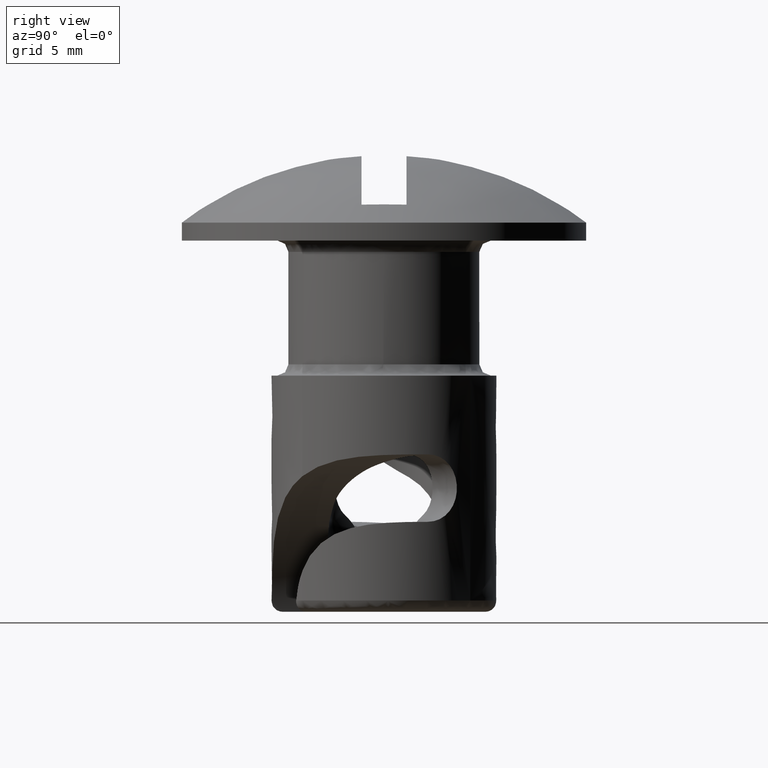
[diagram: clean part render]
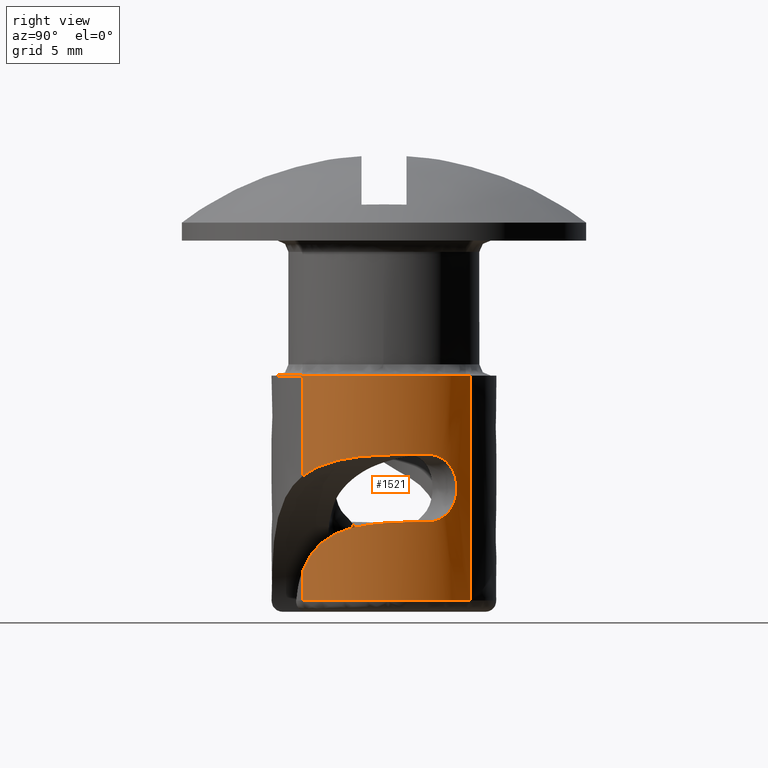
[diagram: same view with one face highlighted and labeled with its STEP entity id]
A machine part, right view. The second image highlights one B-rep face of the part: STEP entity #1521.
In plain terms, the highlighted face is a freeform B-spline surface patch.
Its self-contained STEP definition (entity closure, byte-faithful):
#985=CARTESIAN_POINT('',(3.441774243367128,-3.626873293093873,-14.683041871288410));
#986=VERTEX_POINT('',#985);
#1000=CARTESIAN_POINT('',(3.441769540624432,-3.626875022551604,-15.999992000000001));
#1001=VERTEX_POINT('',#1000);
#1015=CARTESIAN_POINT('',(3.441769540624432,-3.626875022551604,-15.999992000000001));
#1016=CARTESIAN_POINT('',(3.441774243367128,-3.626873293093873,-14.683041871288410));
#1017=QUASI_UNIFORM_CURVE('',1,(#1015,#1016),.UNSPECIFIED.,.F.,.U.);
#1018=EDGE_CURVE('',#1001,#986,#1017,.T.);
#1045=CARTESIAN_POINT('',(3.205212513216011,3.837526904807765,-15.999992000000001));
#1046=VERTEX_POINT('',#1045);
#1244=CARTESIAN_POINT('',(3.441776297669546,-3.626875458289376,-10.471454945593001));
#1245=VERTEX_POINT('',#1244);
#1279=CARTESIAN_POINT('',(3.441772657850810,-3.626872064420038,-6.0));
#1280=VERTEX_POINT('',#1279);
#1281=CARTESIAN_POINT('',(3.441776297669546,-3.626875458289376,-10.471454945593001));
#1282=CARTESIAN_POINT('',(3.441772657850810,-3.626872064420038,-6.0));
#1283=QUASI_UNIFORM_CURVE('',1,(#1281,#1282),.UNSPECIFIED.,.F.,.U.);
#1284=EDGE_CURVE('',#1245,#1280,#1283,.T.);
#1303=CARTESIAN_POINT('',(3.205211575530467,3.837527687989288,-6.0));
#1304=VERTEX_POINT('',#1303);
#1320=CARTESIAN_POINT('',(3.205212513216011,3.837526904807765,-15.999992000000001));
#1321=CARTESIAN_POINT('',(3.205211575530467,3.837527687989288,-6.0));
#1322=QUASI_UNIFORM_CURVE('',1,(#1320,#1321),.UNSPECIFIED.,.F.,.U.);
#1323=EDGE_CURVE('',#1046,#1304,#1322,.T.);
#1328=CARTESIAN_POINT('',(3.414159354550804,-3.653076110821718,-16.249991800000000));
#1329=CARTESIAN_POINT('',(3.427944311257014,-3.639994675353826,-16.249991800000000));
#1330=CARTESIAN_POINT('',(7.068644733530205,-0.185098976592668,-16.249991799999997));
#1331=CARTESIAN_POINT('',(3.626871855061437,3.441772878468769,-16.249991800000000));
#1332=CARTESIAN_POINT('',(3.427504307509547,3.651862437704958,-16.249991800000007));
#1333=CARTESIAN_POINT('',(3.189877330289500,3.850335288378670,-16.249991800000004));
#1334=CARTESIAN_POINT('',(3.174499584691572,3.863179221510595,-16.249991800000004));
#1335=CARTESIAN_POINT('',(3.414159354550804,-3.653076110821718,-5.743750204999999));
#1336=CARTESIAN_POINT('',(3.427944311257014,-3.639994675353826,-5.743750204999999));
#1337=CARTESIAN_POINT('',(7.068644733530205,-0.185098976592668,-5.743750205000000));
#1338=CARTESIAN_POINT('',(3.626871855061437,3.441772878468769,-5.743750205000000));
#1339=CARTESIAN_POINT('',(3.427504307509547,3.651862437704958,-5.743750204999999));
#1340=CARTESIAN_POINT('',(3.189877330289500,3.850335288378670,-5.743750205000000));
#1341=CARTESIAN_POINT('',(3.174499584691572,3.863179221510595,-5.743750205000000));
#1349=(BOUNDED_SURFACE()B_SPLINE_SURFACE(2,1,((#1328,#1335),(#1329,#1336),(#1330,#1337),(#1331,#1338),(#1332,#1339),(#1333,#1340),(#1334,#1341)),.UNSPECIFIED.,.F.,.F.,.U.)B_SPLINE_SURFACE_WITH_KNOTS((3,1,2,1,3),(2,2),(0.0,0.044740487559420,8.329011735021316,8.991753434818270,9.036489696285292),(0.0,10.506241595000009),.UNSPECIFIED.)GEOMETRIC_REPRESENTATION_ITEM()RATIONAL_B_SPLINE_SURFACE(((1.003163630214686,1.003163630214686),(1.001581815107343,1.001581815107343),(0.707106781186548,0.707106781186548),(1.0,1.0),(0.976568542494924,0.976568542494924),(0.955557519009033,0.955557519009033),(0.954228919827405,0.954228919827405)))REPRESENTATION_ITEM('')SURFACE());
#1350=CARTESIAN_POINT('',(3.441769540624433,-3.626875022551604,-15.999992000000002));
#1351=CARTESIAN_POINT('',(5.871268088622720,-1.321371234996644,-15.999991999999999));
#1352=CARTESIAN_POINT('',(4.663728750462753,1.802674164153669,-15.999992000000001));
#1353=CARTESIAN_POINT('',(4.197569954227769,3.008681452388637,-15.999991999999999));
#1354=CARTESIAN_POINT('',(3.205212513216011,3.837526904807766,-15.999992000000002));
#1362=(BOUNDED_CURVE()B_SPLINE_CURVE(2,(#1350,#1351,#1352,#1353,#1354),.UNSPECIFIED.,.F.,.U.)B_SPLINE_CURVE_WITH_KNOTS((3,2,3),(0.035159483034312,0.500000000000000,0.701706688052133),.UNSPECIFIED.)CURVE()GEOMETRIC_REPRESENTATION_ITEM()RATIONAL_B_SPLINE_CURVE((0.974721088157800,0.820255378772700,1.0,0.922004018755491,0.906937281743806))REPRESENTATION_ITEM(''));
#1363=EDGE_CURVE('',#1001,#1046,#1362,.T.);
#1364=ORIENTED_EDGE('',*,*,#1363,.T.);
#1365=ORIENTED_EDGE('',*,*,#1323,.T.);
#1366=CARTESIAN_POINT('',(5.0,0.0,-6.0));
#1367=VERTEX_POINT('',#1366);
#1368=CARTESIAN_POINT('',(5.0,0.0,-6.0));
#1369=CARTESIAN_POINT('',(4.999999999999999,2.338469674221193,-5.999999999999999));
#1370=CARTESIAN_POINT('',(3.205211575530467,3.837527687989289,-6.0));
#1378=(BOUNDED_CURVE()B_SPLINE_CURVE(2,(#1368,#1369,#1370),.UNSPECIFIED.,.F.,.U.)B_SPLINE_CURVE_WITH_KNOTS((3,3),(0.0,0.138519971314716),.UNSPECIFIED.)CURVE()GEOMETRIC_REPRESENTATION_ITEM()RATIONAL_B_SPLINE_CURVE((1.0,0.837713758926743,0.855266601519411))REPRESENTATION_ITEM(''));
#1379=EDGE_CURVE('',#1367,#1304,#1378,.T.);
#1380=ORIENTED_EDGE('',*,*,#1379,.F.);
#1381=CARTESIAN_POINT('',(3.441772657850810,-3.626872064420038,-6.0));
#1382=CARTESIAN_POINT('',(5.0,-2.148169890118183,-6.000000000000001));
#1383=CARTESIAN_POINT('',(5.0,0.0,-6.0));
#1391=(BOUNDED_CURVE()B_SPLINE_CURVE(2,(#1381,#1382,#1383),.UNSPECIFIED.,.F.,.U.)B_SPLINE_CURVE_WITH_KNOTS((3,3),(0.871049508299242,1.0),.UNSPECIFIED.)CURVE()GEOMETRIC_REPRESENTATION_ITEM()RATIONAL_B_SPLINE_CURVE((0.853699662729028,0.848925101672750,1.0))REPRESENTATION_ITEM(''));
#1392=EDGE_CURVE('',#1280,#1367,#1391,.T.);
#1393=ORIENTED_EDGE('',*,*,#1392,.F.);
#1394=ORIENTED_EDGE('',*,*,#1284,.F.);
#1395=CARTESIAN_POINT('',(4.602524578819660,1.953654908462775,-9.500000000000000));
#1396=VERTEX_POINT('',#1395);
#1397=CARTESIAN_POINT('',(3.441776297669546,-3.626875458289376,-10.471454945593001));
#1398=CARTESIAN_POINT('',(3.548381509798976,-3.525717545690830,-10.389834397024240));
#1399=CARTESIAN_POINT('',(3.652592598367981,-3.417886701879547,-10.314358264936960));
#1400=CARTESIAN_POINT('',(3.834674338870442,-3.210957832212222,-10.188839510665620));
#1401=CARTESIAN_POINT('',(3.913650476981982,-3.114392468433850,-10.136731032872101));
#1402=CARTESIAN_POINT('',(4.066783014657808,-2.911593864520123,-10.039588742060870));
#1403=CARTESIAN_POINT('',(4.141245809526811,-2.804805214253775,-9.994391371279866));
#1404=CARTESIAN_POINT('',(4.351415886478691,-2.476428944943589,-9.871486566765258));
#1405=CARTESIAN_POINT('',(4.475379853534943,-2.245292785788621,-9.805434104324741));
#1406=CARTESIAN_POINT('',(4.634748496876306,-1.880605395421023,-9.724523916186765));
#1407=CARTESIAN_POINT('',(4.683430846234479,-1.756036426455043,-9.700596510378208));
#1408=CARTESIAN_POINT('',(4.749366496346248,-1.564623358477206,-9.668664364524494));
#1409=CARTESIAN_POINT('',(4.770195116817543,-1.499932632052761,-9.658665235824481));
#1410=CARTESIAN_POINT('',(4.809061481041812,-1.370214733642255,-9.640054919865758));
#1411=CARTESIAN_POINT('',(4.827143866245112,-1.305074134371876,-9.631421843659249));
#1412=CARTESIAN_POINT('',(4.910849266136363,-0.978002447094358,-9.591262512111106));
#1413=CARTESIAN_POINT('',(4.956467477360083,-0.711993199237515,-9.568652905663850));
#1414=CARTESIAN_POINT('',(4.986423274826610,-0.374385009953064,-9.547758871331718));
#1415=CARTESIAN_POINT('',(4.991053814304772,-0.306606815015429,-9.543954416044903));
#1416=CARTESIAN_POINT('',(4.997553755421681,-0.170538966045762,-9.537002851556004));
#1417=CARTESIAN_POINT('',(4.999423433452044,-0.102132934110173,-9.533851017553978));
#1418=CARTESIAN_POINT('',(5.000808249380353,0.103035514947085,-9.525289053641235));
#1419=CARTESIAN_POINT('',(4.996122824351843,0.239010771575370,-9.520791188794787));
#1420=CARTESIAN_POINT('',(4.965685967688790,0.644569602078663,-9.509845702912930));
#1421=CARTESIAN_POINT('',(4.923658369369876,0.911800119627725,-9.505869422404055));
#1422=CARTESIAN_POINT('',(4.827832726320831,1.307852327200382,-9.502173121065090));
#1423=CARTESIAN_POINT('',(4.790311754253912,1.439330061271592,-9.501338147777082));
#1424=CARTESIAN_POINT('',(4.704331981734637,1.699417351723835,-9.500251493202404));
#1425=CARTESIAN_POINT('',(4.656068952132438,1.827512128529285,-9.499999999999314));
#1426=CARTESIAN_POINT('',(4.602524578819660,1.953654908462775,-9.500000000000000));
#1427=B_SPLINE_CURVE_WITH_KNOTS('',3,(#1397,#1398,#1399,#1400,#1401,#1402,#1403,#1404,#1405,#1406,#1407,#1408,#1409,#1410,#1411,#1412,#1413,#1414,#1415,#1416,#1417,#1418,#1419,#1420,#1421,#1422,#1423,#1424,#1425,#1426),.UNSPECIFIED.,.F.,.U.,(4,2,2,2,2,2,2,2,2,2,2,2,2,2,4),(0.523473233906410,0.562500000000006,0.593750000000005,0.625000000000005,0.687500000000004,0.718750000000004,0.734375000000004,0.750000000000003,0.812500000000003,0.828125000000002,0.843750000000002,0.875000000000002,0.937500000000001,0.968750000000000,1.0),.UNSPECIFIED.);
#1428=EDGE_CURVE('',#1245,#1396,#1427,.T.);
#1429=ORIENTED_EDGE('',*,*,#1428,.T.);
#1430=CARTESIAN_POINT('',(4.602524578820230,1.953654908464365,-12.500000000003761));
#1431=VERTEX_POINT('',#1430);
#1432=CARTESIAN_POINT('',(4.602524578819660,1.953654908462775,-9.500000000000000));
#1433=CARTESIAN_POINT('',(4.563888335937325,2.044676233022971,-9.499999999998712));
#1434=CARTESIAN_POINT('',(4.522988108416792,2.133531719943489,-9.509682829590782));
#1435=CARTESIAN_POINT('',(4.458480223899396,2.263691421178953,-9.538600209390721));
#1436=CARTESIAN_POINT('',(4.436325682373277,2.306788186096278,-9.550742209554334));
#1437=CARTESIAN_POINT('',(4.391689454748661,2.390673760396321,-9.579593394369102));
#1438=CARTESIAN_POINT('',(4.369260238922511,2.431385331617874,-9.596239295939933));
#1439=CARTESIAN_POINT('',(4.301813212885345,2.550035636297681,-9.652631568160198));
#1440=CARTESIAN_POINT('',(4.256622245118567,2.624516412491074,-9.698766978454312));
#1441=CARTESIAN_POINT('',(4.166965229559699,2.764655514293546,-9.808624989452861));
#1442=CARTESIAN_POINT('',(4.123928188989802,2.828103263411385,-9.870610466680208));
#1443=CARTESIAN_POINT('',(4.063011887700120,2.914304778934972,-9.973769728811167));
#1444=CARTESIAN_POINT('',(4.043314921861692,2.941534866259906,-10.009869394523530));
#1445=CARTESIAN_POINT('',(4.005353683660794,2.993019344333916,-10.085599964781441));
#1446=CARTESIAN_POINT('',(3.987068279313911,3.017296079900917,-10.125325430129980));
#1447=CARTESIAN_POINT('',(3.935837247661399,3.084208415575645,-10.247326254159301));
#1448=CARTESIAN_POINT('',(3.906065506707493,3.121568112939354,-10.333173105041331));
#1449=CARTESIAN_POINT('',(3.869015228129437,3.167191969411543,-10.468863480211461));
#1450=CARTESIAN_POINT('',(3.857908938142201,3.180686438203840,-10.515408293585191));
#1451=CARTESIAN_POINT('',(3.838645093046536,3.203908775667784,-10.610277731646409));
#1452=CARTESIAN_POINT('',(3.830575341310173,3.213532960955392,-10.658121174139771));
#1453=CARTESIAN_POINT('',(3.811099976680845,3.236653072873953,-10.802856774833430));
#1454=CARTESIAN_POINT('',(3.804400519366002,3.244462465592797,-10.900979740911909));
#1455=CARTESIAN_POINT('',(3.804464001416535,3.244388026164331,-11.100424053246609));
#1456=CARTESIAN_POINT('',(3.811220267633781,3.236511522801229,-11.198357456029550));
#1457=CARTESIAN_POINT('',(3.830709542850856,3.213373008183660,-11.342713633293229));
#1458=CARTESIAN_POINT('',(3.838772165615324,3.203756348083364,-11.390405392791290));
#1459=CARTESIAN_POINT('',(3.857987983951831,3.180590384358021,-11.484923042933181));
#1460=CARTESIAN_POINT('',(3.869159482681559,3.167016169637896,-11.531723439997840));
#1461=CARTESIAN_POINT('',(3.906337838463248,3.121229049025454,-11.667705702132780));
#1462=CARTESIAN_POINT('',(3.936183187646427,3.083767803543986,-11.753605951446470));
#1463=CARTESIAN_POINT('',(3.987451172444842,3.016790286975460,-11.875531304672730));
#1464=CARTESIAN_POINT('',(4.005736760199249,2.992507007240880,-11.915208834497470));
#1465=CARTESIAN_POINT('',(4.043732834366357,2.940960717973767,-11.990918784804149));
#1466=CARTESIAN_POINT('',(4.063440839945875,2.913706825363495,-12.026995332467591));
#1467=CARTESIAN_POINT('',(4.124368310533359,2.827462066006832,-12.130056315970871));
#1468=CARTESIAN_POINT('',(4.167374391739297,2.764036537589164,-12.191926270961050));
#1469=CARTESIAN_POINT('',(4.256934651737492,2.624007369061484,-12.301565505830970));
#1470=CARTESIAN_POINT('',(4.302196790825363,2.549380996104971,-12.347723002082891));
#1471=CARTESIAN_POINT('',(4.369475931489904,2.430995733583821,-12.403923958845439));
#1472=CARTESIAN_POINT('',(4.391828437819328,2.390414362847930,-12.420499122912011));
#1473=CARTESIAN_POINT('',(4.436270531590656,2.306890032898965,-12.449219454146551));
#1474=CARTESIAN_POINT('',(4.458477163732524,2.263700551619402,-12.461402498947940));
#1475=CARTESIAN_POINT('',(4.523174490997310,2.133149725569401,-12.490392544015160));
#1476=CARTESIAN_POINT('',(4.564039231841210,2.044320744390517,-12.499999999997730));
#1477=CARTESIAN_POINT('',(4.602524578820230,1.953654908464365,-12.500000000003761));
#1478=B_SPLINE_CURVE_WITH_KNOTS('',3,(#1432,#1433,#1434,#1435,#1436,#1437,#1438,#1439,#1440,#1441,#1442,#1443,#1444,#1445,#1446,#1447,#1448,#1449,#1450,#1451,#1452,#1453,#1454,#1455,#1456,#1457,#1458,#1459,#1460,#1461,#1462,#1463,#1464,#1465,#1466,#1467,#1468,#1469,#1470,#1471,#1472,#1473,#1474,#1475,#1476,#1477),.UNSPECIFIED.,.F.,.U.,(4,2,2,2,2,2,2,2,2,2,2,2,2,2,2,2,2,2,2,2,2,2,4),(0.0,0.062500000000001,0.093750000000001,0.125000000000002,0.187500000000002,0.250000000000003,0.281250000000003,0.312500000000003,0.375000000000003,0.406250000000004,0.437500000000004,0.500000000000004,0.562500000000004,0.593750000000004,0.625000000000004,0.687500000000004,0.718750000000004,0.750000000000004,0.812500000000003,0.875000000000002,0.906250000000002,0.937500000000001,1.0),.UNSPECIFIED.);
#1479=EDGE_CURVE('',#1396,#1431,#1478,.T.);
#1480=ORIENTED_EDGE('',*,*,#1479,.T.);
#1481=CARTESIAN_POINT('',(3.441774243367128,-3.626873293093873,-14.683041871288410));
#1482=CARTESIAN_POINT('',(3.458372929608056,-3.611119549832607,-14.640628025512950));
#1483=CARTESIAN_POINT('',(3.475463306327664,-3.594681831130905,-14.598668672144710));
#1484=CARTESIAN_POINT('',(3.554884268030372,-3.517137152199069,-14.410942587141889));
#1485=CARTESIAN_POINT('',(3.622578274773292,-3.447971163048842,-14.270361972984050));
#1486=CARTESIAN_POINT('',(3.840223736691255,-3.209213780655119,-13.866283462725200));
#1487=CARTESIAN_POINT('',(3.997130243592130,-3.016723910657083,-13.634265171982710));
#1488=CARTESIAN_POINT('',(4.191212266237683,-2.727376132304492,-13.386887059253629));
#1489=CARTESIAN_POINT('',(4.230054400412429,-2.666835398409543,-13.339403778152260));
#1490=CARTESIAN_POINT('',(4.306500511154403,-2.541539934396531,-13.249343413261320));
#1491=CARTESIAN_POINT('',(4.343896025319115,-2.477145569973763,-13.206995277086961));
#1492=CARTESIAN_POINT('',(4.453078612969107,-2.278785606387433,-13.087369366273110));
#1493=CARTESIAN_POINT('',(4.521859766353056,-2.139649282588571,-13.017495955196720));
#1494=CARTESIAN_POINT('',(4.617045568706756,-1.920731875996379,-12.925337288910629));
#1495=CARTESIAN_POINT('',(4.647444122741635,-1.846055682427545,-12.896730344687450));
#1496=CARTESIAN_POINT('',(4.705252122393513,-1.693299022709614,-12.843418472958460));
#1497=CARTESIAN_POINT('',(4.732641347706611,-1.615218239232007,-12.818734937622480));
#1498=CARTESIAN_POINT('',(4.808854179847189,-1.379219972915420,-12.750915742389980));
#1499=CARTESIAN_POINT('',(4.852154044914729,-1.218479222408599,-12.713586222361631));
#1500=CARTESIAN_POINT('',(4.922867212770048,-0.890769406495646,-12.650935993207209));
#1501=CARTESIAN_POINT('',(4.950292022645133,-0.723744885333959,-12.625618807743850));
#1502=CARTESIAN_POINT('',(4.988155244563982,-0.384065325465553,-12.584036204595060));
#1503=CARTESIAN_POINT('',(4.998301699420537,-0.214132160118844,-12.568081577288829));
#1504=CARTESIAN_POINT('',(5.001306649176196,0.125718994511833,-12.542704384100150));
#1505=CARTESIAN_POINT('',(4.994165694457532,0.295637623100820,-12.533291197905029));
#1506=CARTESIAN_POINT('',(4.970346515980421,0.550388064343036,-12.522383141168479));
#1507=CARTESIAN_POINT('',(4.960218450437212,0.635283924407240,-12.519288313281431));
#1508=CARTESIAN_POINT('',(4.935514179054964,0.805017336300379,-12.513962832502470));
#1509=CARTESIAN_POINT('',(4.920916442401788,0.889903342503782,-12.511732951195350));
#1510=CARTESIAN_POINT('',(4.870821566335184,1.142142298204840,-12.506113041504120));
#1511=CARTESIAN_POINT('',(4.828944501939877,1.307854258081084,-12.503741510881330));
#1512=CARTESIAN_POINT('',(4.728408881935306,1.634422740529316,-12.500684384104090));
#1513=CARTESIAN_POINT('',(4.669750925518081,1.795279451881529,-12.499999999999501));
#1514=CARTESIAN_POINT('',(4.602524578820230,1.953654908464365,-12.500000000003761));
#1515=B_SPLINE_CURVE_WITH_KNOTS('',3,(#1481,#1482,#1483,#1484,#1485,#1486,#1487,#1488,#1489,#1490,#1491,#1492,#1493,#1494,#1495,#1496,#1497,#1498,#1499,#1500,#1501,#1502,#1503,#1504,#1505,#1506,#1507,#1508,#1509,#1510,#1511,#1512,#1513,#1514),.UNSPECIFIED.,.F.,.U.,(4,2,2,2,2,2,2,2,2,2,2,2,2,2,2,2,4),(0.169759315350501,0.187500000000000,0.250000000000000,0.375000000000000,0.406250000000000,0.437500000000000,0.500000000000000,0.531250000000000,0.562500000000000,0.625000000000000,0.687500000000000,0.750000000000000,0.812500000000000,0.843750000000000,0.875000000000000,0.937500000000000,1.0),.UNSPECIFIED.);
#1516=EDGE_CURVE('',#986,#1431,#1515,.T.);
#1517=ORIENTED_EDGE('',*,*,#1516,.F.);
#1518=ORIENTED_EDGE('',*,*,#1018,.F.);
#1519=EDGE_LOOP('',(#1364,#1365,#1380,#1393,#1394,#1429,#1480,#1517,#1518));
#1520=FACE_OUTER_BOUND('',#1519,.T.);
#1521=ADVANCED_FACE('',(#1520),#1349,.T.);